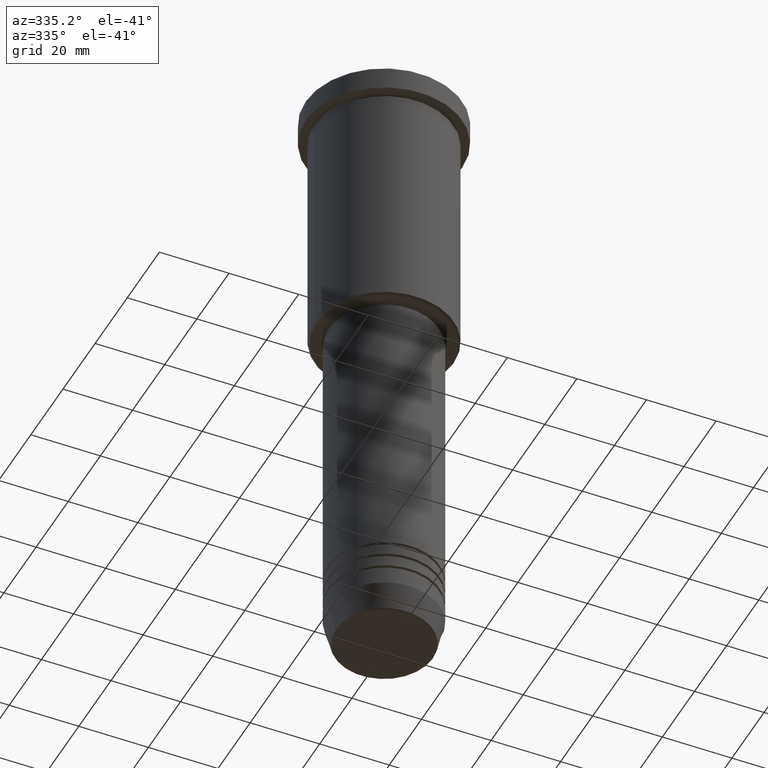
[diagram: clean part render]
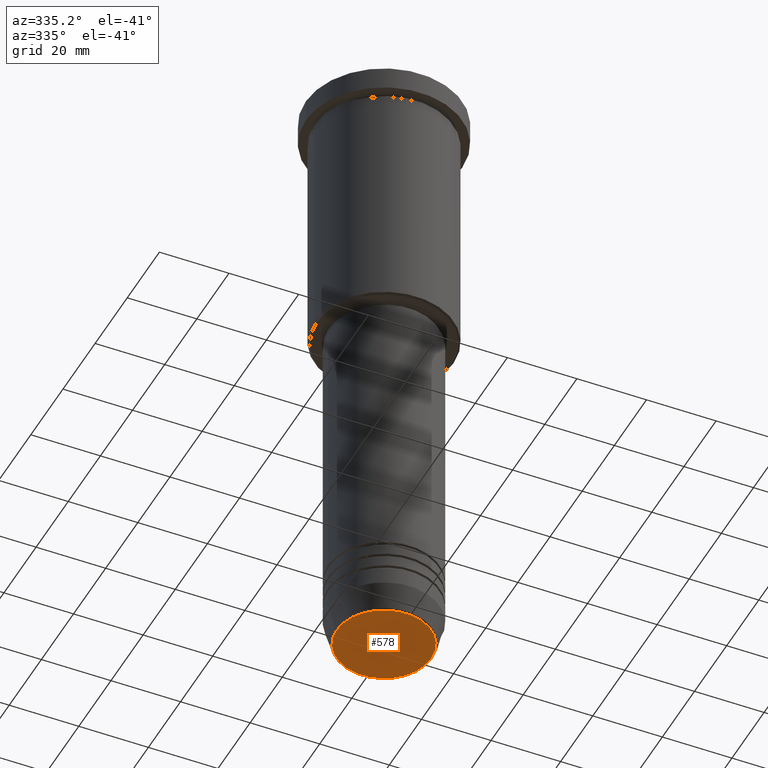
[diagram: same view with one face highlighted and labeled with its STEP entity id]
A machine part, auxiliary view. The second image highlights one B-rep face of the part: STEP entity #578.
In plain terms, the highlighted planar face has unit normal (0, -0, 1).
Its self-contained STEP definition (entity closure, byte-faithful):
#5 = ORIENTED_EDGE ( 'NONE', *, *, #205, .T. ) ;
#11 = PLANE ( 'NONE',  #898 ) ;
#95 = CIRCLE ( 'NONE', #1065, 13.60671756277710109 ) ;
#135 = DIRECTION ( 'NONE',  ( 0.000000000000000000, 0.000000000000000000, -1.000000000000000000 ) ) ;
#205 = EDGE_CURVE ( 'NONE', #1166, #673, #95, .T. ) ;
#287 = DIRECTION ( 'NONE',  ( 0.000000000000000000, -0.000000000000000000, 1.000000000000000000 ) ) ;
#307 = ORIENTED_EDGE ( 'NONE', *, *, #1013, .T. ) ;
#476 = DIRECTION ( 'NONE',  ( 1.000000000000000000, 0.000000000000000000, 0.000000000000000000 ) ) ;
#544 = CARTESIAN_POINT ( 'NONE',  ( -13.60671756277710109, 1.695915260300172047E-15, -180.0000000000000000 ) ) ;
#578 = ADVANCED_FACE ( 'NONE', ( #648 ), #11, .F. ) ;
#648 = FACE_OUTER_BOUND ( 'NONE', #1051, .T. ) ;
#673 = VERTEX_POINT ( 'NONE', #885 ) ;
#760 = DIRECTION ( 'NONE',  ( 0.000000000000000000, 0.000000000000000000, -1.000000000000000000 ) ) ;
#824 = CIRCLE ( 'NONE', #1087, 13.60671756277710109 ) ;
#841 = DIRECTION ( 'NONE',  ( 1.000000000000000000, 0.000000000000000000, 0.000000000000000000 ) ) ;
#885 = CARTESIAN_POINT ( 'NONE',  ( 13.60671756277710109, 0.000000000000000000, -180.0000000000000000 ) ) ;
#898 = AXIS2_PLACEMENT_3D ( 'NONE', #1032, #287, #841 ) ;
#948 = CARTESIAN_POINT ( 'NONE',  ( 0.000000000000000000, 0.000000000000000000, -180.0000000000000000 ) ) ;
#1013 = EDGE_CURVE ( 'NONE', #673, #1166, #824, .T. ) ;
#1014 = DIRECTION ( 'NONE',  ( 1.000000000000000000, 0.000000000000000000, 0.000000000000000000 ) ) ;
#1023 = CARTESIAN_POINT ( 'NONE',  ( 0.000000000000000000, 0.000000000000000000, -180.0000000000000000 ) ) ;
#1032 = CARTESIAN_POINT ( 'NONE',  ( 0.000000000000000000, 0.000000000000000000, -180.0000000000000000 ) ) ;
#1051 = EDGE_LOOP ( 'NONE', ( #307, #5 ) ) ;
#1065 = AXIS2_PLACEMENT_3D ( 'NONE', #948, #135, #476 ) ;
#1087 = AXIS2_PLACEMENT_3D ( 'NONE', #1023, #760, #1014 ) ;
#1166 = VERTEX_POINT ( 'NONE', #544 ) ;